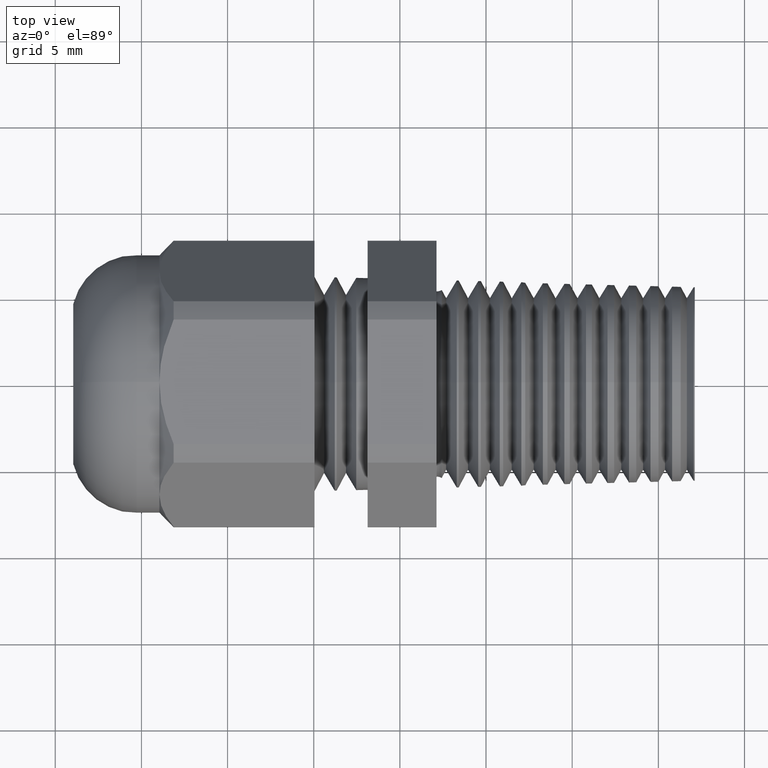
[diagram: clean part render]
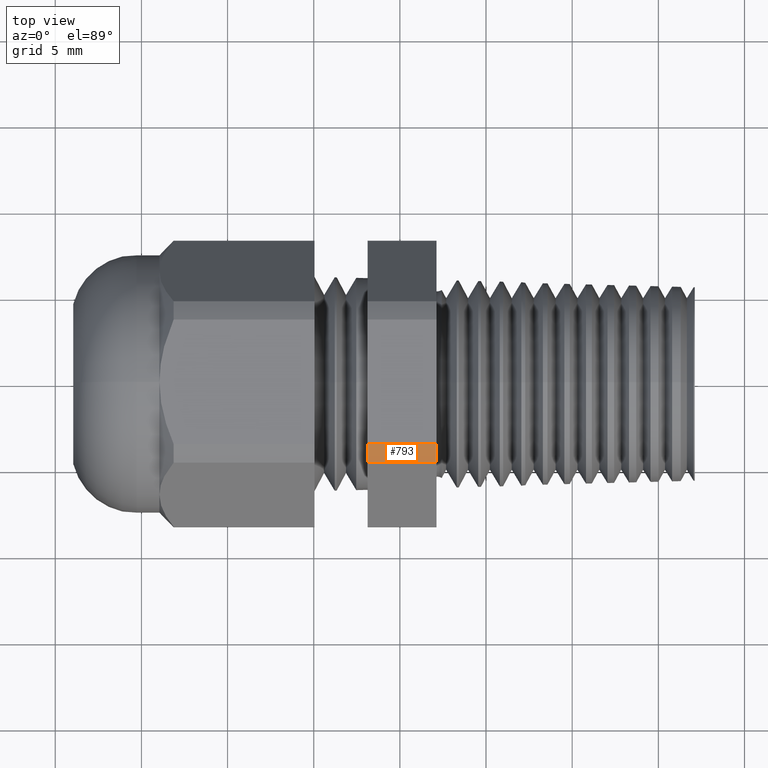
[diagram: same view with one face highlighted and labeled with its STEP entity id]
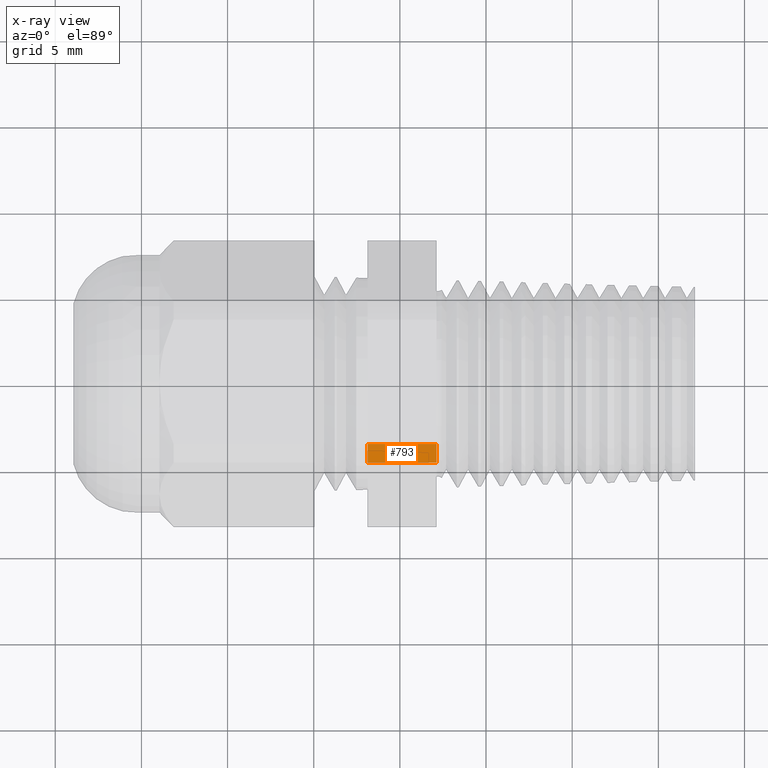
[diagram: x-ray of the same camera — body ghosted, the highlighted face saturated]
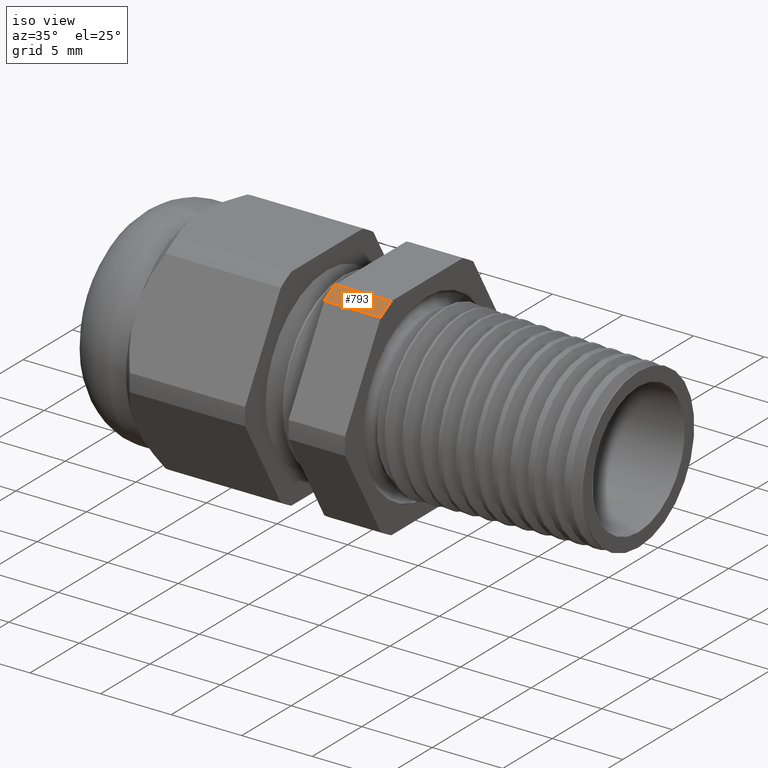
[diagram: same view with one face highlighted and labeled with its STEP entity id]
A machine part, top view. The second image highlights one B-rep face of the part: STEP entity #793.
The next image is the same camera in x-ray: the body ghosted, the highlighted face saturated — about 0% of this face is hidden behind the body in this view.
A second angle (iso view) of the same face is appended — the face is thin or edge-on in the first view.
In plain terms, the highlighted cylindrical surface (partial cylindrical patch) has radius 8.3172 mm, axis along (-1, 0, 0).
Its self-contained STEP definition (entity closure, byte-faithful):
#228 = VERTEX_POINT ( 'NONE', #1767 ) ;
#230 = EDGE_CURVE ( 'NONE', #228, #231, #1762, .T. ) ;
#231 = VERTEX_POINT ( 'NONE', #1820 ) ;
#750 = EDGE_CURVE ( 'NONE', #831, #751, #2721, .T. ) ;
#751 = VERTEX_POINT ( 'NONE', #2716 ) ;
#793 = ADVANCED_FACE ( 'NONE', ( #2775 ), #2774, .T. ) ;
#794 = EDGE_LOOP ( 'NONE', ( #795, #796, #797, #799 ) ) ;
#795 = ORIENTED_EDGE ( 'NONE', *, *, #817, .T. ) ;
#796 = ORIENTED_EDGE ( 'NONE', *, *, #750, .F. ) ;
#797 = ORIENTED_EDGE ( 'NONE', *, *, #798, .F. ) ;
#798 = EDGE_CURVE ( 'NONE', #231, #831, #2769, .T. ) ;
#799 = ORIENTED_EDGE ( 'NONE', *, *, #230, .F. ) ;
#817 = EDGE_CURVE ( 'NONE', #228, #751, #2809, .T. ) ;
#831 = VERTEX_POINT ( 'NONE', #2848 ) ;
#1759 = DIRECTION ( 'NONE',  ( 1.000000000000000000, 0.0000000000000000000, 0.0000000000000000000 ) ) ;
#1760 = CARTESIAN_POINT ( 'NONE',  ( -0.3100000000000000000, 0.0000000000000000000, 0.0000000000000000000 ) ) ;
#1761 = AXIS2_PLACEMENT_3D ( 'NONE', #1760, #1759, #1821 ) ;
#1762 = CIRCLE ( 'NONE', #1761, 0.3274500000000000200 ) ;
#1767 = CARTESIAN_POINT ( 'NONE',  ( -0.3099999999999998300, -0.1421214357512617700, 0.2949999999999999800 ) ) ;
#1820 = CARTESIAN_POINT ( 'NONE',  ( -0.3099999999999998300, -0.1844167762407789300, 0.2705807737829102900 ) ) ;
#1821 = DIRECTION ( 'NONE',  ( 0.0000000000000000000, 0.0000000000000000000, -1.000000000000000000 ) ) ;
#2716 = CARTESIAN_POINT ( 'NONE',  ( -0.4674799999999997300, -0.1421214357512617700, 0.2949999999999999800 ) ) ;
#2717 = DIRECTION ( 'NONE',  ( 0.0000000000000000000, 0.0000000000000000000, 1.000000000000000000 ) ) ;
#2718 = DIRECTION ( 'NONE',  ( -1.000000000000000000, 0.0000000000000000000, 0.0000000000000000000 ) ) ;
#2719 = CARTESIAN_POINT ( 'NONE',  ( -0.4674800000000000100, 0.0000000000000000000, 0.0000000000000000000 ) ) ;
#2720 = AXIS2_PLACEMENT_3D ( 'NONE', #2719, #2718, #2717 ) ;
#2721 = CIRCLE ( 'NONE', #2720, 0.3274500000000000200 ) ;
#2766 = DIRECTION ( 'NONE',  ( -1.000000000000000000, 0.0000000000000000000, 0.0000000000000000000 ) ) ;
#2767 = VECTOR ( 'NONE', #2766, 39.37007874015748100 ) ;
#2768 = CARTESIAN_POINT ( 'NONE',  ( 0.2800000000000000300, -0.1844167762407789300, 0.2705807737829102900 ) ) ;
#2769 = LINE ( 'NONE', #2768, #2767 ) ;
#2770 = DIRECTION ( 'NONE',  ( 0.0000000000000000000, 0.0000000000000000000, 1.000000000000000000 ) ) ;
#2771 = DIRECTION ( 'NONE',  ( -1.000000000000000000, 0.0000000000000000000, 0.0000000000000000000 ) ) ;
#2772 = CARTESIAN_POINT ( 'NONE',  ( 0.2800000000000000300, 0.0000000000000000000, 0.0000000000000000000 ) ) ;
#2773 = AXIS2_PLACEMENT_3D ( 'NONE', #2772, #2771, #2770 ) ;
#2774 = CYLINDRICAL_SURFACE ( 'NONE', #2773, 0.3274500000000000200 ) ;
#2775 = FACE_OUTER_BOUND ( 'NONE', #794, .T. ) ;
#2806 = DIRECTION ( 'NONE',  ( -1.000000000000000000, 0.0000000000000000000, 0.0000000000000000000 ) ) ;
#2807 = VECTOR ( 'NONE', #2806, 39.37007874015748100 ) ;
#2808 = CARTESIAN_POINT ( 'NONE',  ( 0.2800000000000000300, -0.1421214357512617700, 0.2949999999999999800 ) ) ;
#2809 = LINE ( 'NONE', #2808, #2807 ) ;
#2848 = CARTESIAN_POINT ( 'NONE',  ( -0.4674799999999997300, -0.1844167762407789300, 0.2705807737829102900 ) ) ;